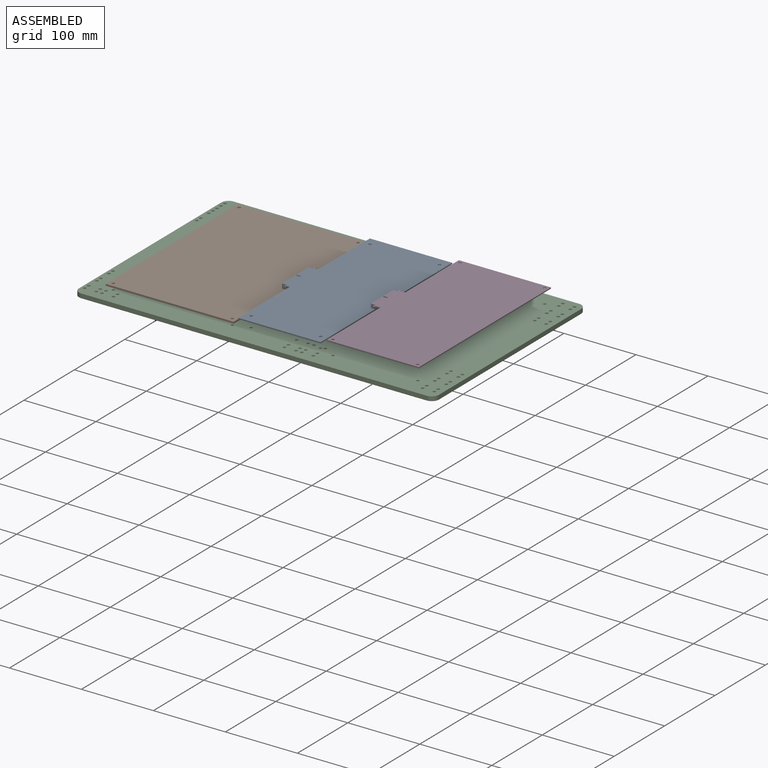
[diagram: assembled view]
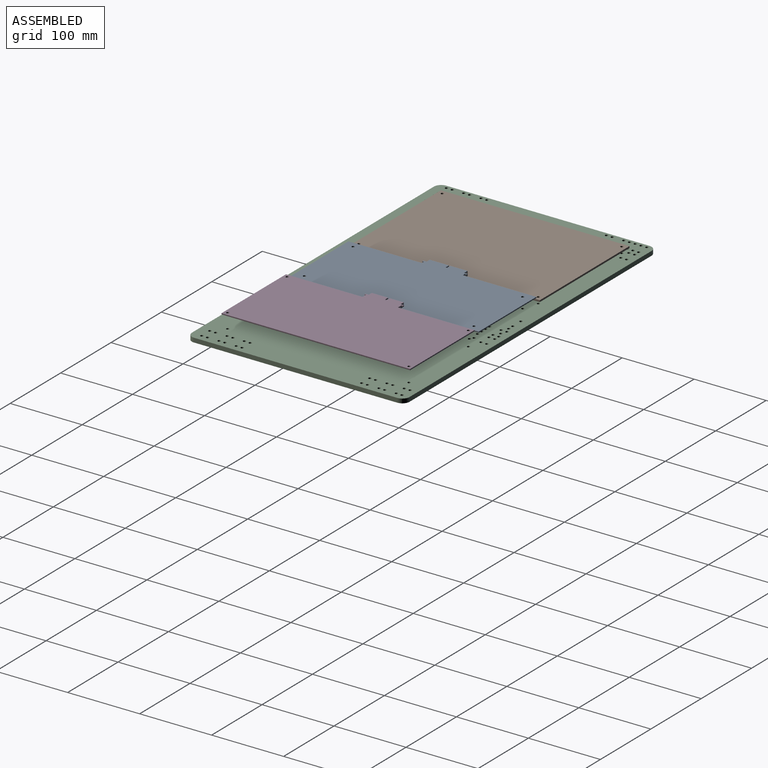
[diagram: assembled view, second angle]
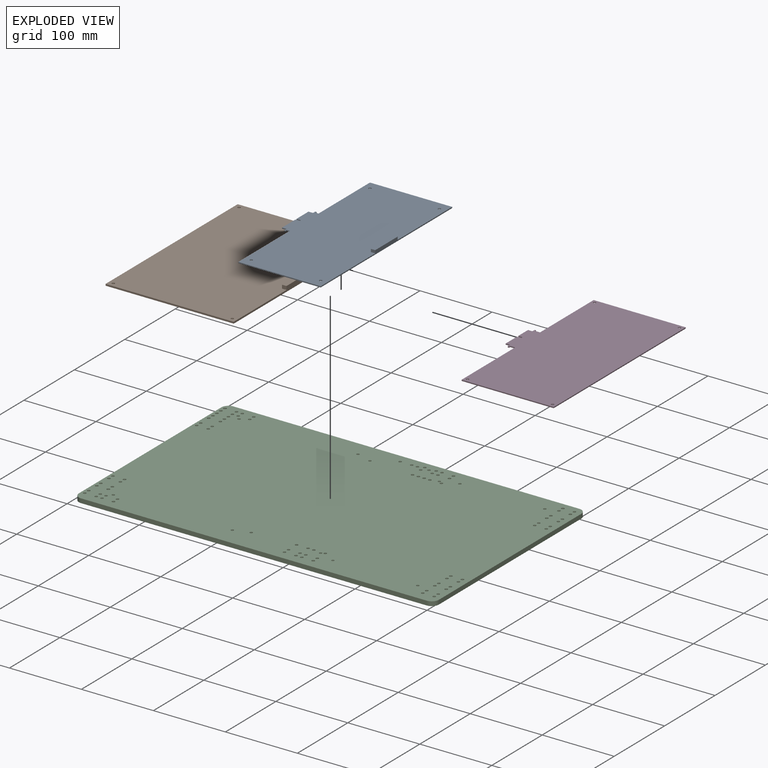
[diagram: exploded view]
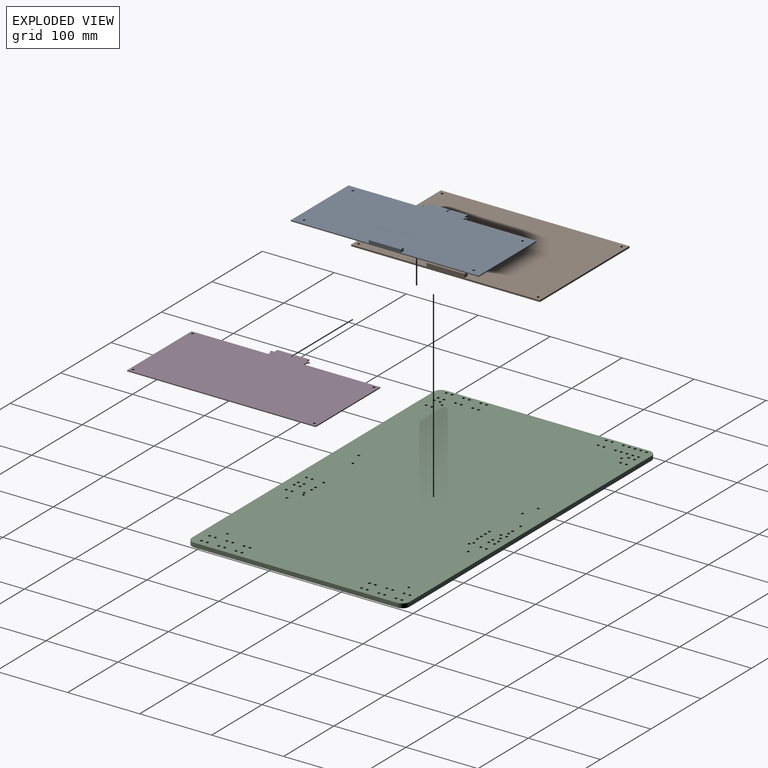
[diagram: exploded view, second angle]
ASSEMBLY  parts=4 mates=3
PART A: 30 faces, bbox 126.7x261x5.5 mm
  f0: plane 114.3x1.5mm, normal (0,1,0), area 171.4mm2, adj f1,f19,f24,f25
  f1: plane 102x1.5mm, normal (-1,0,0), area 153mm2, adj f0,f2,f24,f25
  f2: plane 4.25x1.5mm, normal (0,1,0), area 6.4mm2, adj f1,f3,f24,f25
  f3: plane 2.25x1.5mm, normal (1,0,0), area 3.4mm2, adj f2,f4,f24,f25
  f4: plane 1.85x1.5mm, normal (0,1,0), area 2.8mm2, adj f3,f5,f24,f25
  f5: plane 4.5x1.5mm, normal (-1,0,0), area 6.8mm2, adj f4,f6,f24,f25
  f6: plane 6.25x1.5mm, normal (0,1,0), area 9.4mm2, adj f5,f7,f24,f25
  f7: plane 23.9x1.5mm, normal (-1,0,0), area 35.9mm2, adj f6,f8,f24,f25
  f8: plane 6.25x1.5mm, normal (0,-1,0), area 9.4mm2, adj f7,f9,f24,f25
  f9: plane 1.9x1.5mm, normal (-1,0,0), area 2.8mm2, adj f8,f10,f24,f25
  f10: plane 6.25x1.5mm, normal (0,1,0), area 9.4mm2, adj f9,f11,f24,f25
  f11: plane 26.7x1.5mm, normal (-1,0,0), area 40.1mm2, adj f10,f12,f24,f25
  f12: plane 6.25x1.5mm, normal (0,-1,0), area 9.4mm2, adj f11,f13,f24,f25
  f13: plane 4.5x1.5mm, normal (-1,0,0), area 6.7mm2, adj f12,f14,f24,f25
  f14: plane 1.85x1.5mm, normal (0,-1,0), area 2.8mm2, adj f13,f15,f24,f25
  f15: plane 2.25x1.5mm, normal (1,0,0), area 3.4mm2, adj f14,f16,f24,f25
  f16: plane 4.25x1.5mm, normal (0,-1,0), area 6.4mm2, adj f15,f17,f24,f25
  f17: plane 102x1.5mm, normal (-1,0,0), area 153mm2, adj f16,f18,f24,f25
  f18: plane 114.3x1.5mm, normal (0,-1,0), area 171.4mm2, adj f17,f19,f24,f25
  f19: plane 261x5.5mm, normal (1,0,0), area 569.1mm2, adj f0,f18,f24,f25,f26,f27,f29
  f20: cylinder r=1.91mm len=3.81mm, axis (0,0,-1), area 18mm2, adj f24,f25
  f21: cylinder r=1.91mm len=3.81mm, axis (0,0,-1), area 18mm2, adj f24,f25
  f22: cylinder r=1.91mm len=3.81mm, axis (0,0,-1), area 18mm2, adj f24,f25
  f23: cylinder r=1.91mm len=3.81mm, axis (0,0,-1), area 18mm2, adj f24,f25
  f24: plane 261x126.65mm, normal (0,0,1), area 30192.6mm2, adj f0,f1,f2,f3,f4,f5,f6,f7
  f25: plane 261x126.65mm, normal (0,0,-1), area 30459mm2, adj f0,f1,f2,f3,f4,f5,f6,f7
  f26: plane 6x4mm, normal (0,-1,0), area 24mm2, adj f19,f24,f28,f29
  f27: plane 6x4mm, normal (0,1,0), area 24mm2, adj f19,f24,f28,f29
  f28: plane 44.4x4mm, normal (-1,0,0), area 177.6mm2, adj f24,f26,f27,f29
  f29: plane 44.4x6mm, normal (0,0,1), area 266.4mm2, adj f19,f26,f27,f28
PART B: 14 faces, bbox 178x262x7.2 mm
  f0: plane 178x2.32mm, normal (0,1,0), area 413mm2, adj f1,f3,f8,f9
  f1: plane 262x2.32mm, normal (-1,0,0), area 607.8mm2, adj f0,f2,f8,f9
  f2: plane 178x2.32mm, normal (0,-1,0), area 413mm2, adj f1,f3,f8,f9
  f3: plane 262x7.24mm, normal (1,0,0), area 866.6mm2, adj f0,f2,f8,f9,f10,f11,f13
  f4: cylinder r=1.91mm len=3.81mm, axis (0,0,-1), area 27.8mm2, adj f8,f9
  f5: cylinder r=1.91mm len=3.81mm, axis (0,0,-1), area 27.8mm2, adj f8,f9
  f6: cylinder r=1.91mm len=3.81mm, axis (0,0,-1), area 27.8mm2, adj f8,f9
  f7: cylinder r=1.91mm len=3.81mm, axis (0,0,-1), area 27.8mm2, adj f8,f9
  f8: plane 262x178mm, normal (0,0,1), area 46261.6mm2, adj f0,f1,f2,f3,f4,f5,f6,f7
  f9: plane 262x178mm, normal (0,0,-1), area 46590.4mm2, adj f0,f1,f2,f3,f4,f5,f6,f7
  f10: plane 6.25x4.92mm, normal (0,-1,0), area 30.7mm2, adj f3,f8,f12,f13
  f11: plane 6.25x4.92mm, normal (0,1,0), area 30.7mm2, adj f3,f8,f12,f13
  f12: plane 52.6x4.92mm, normal (-1,0,0), area 258.8mm2, adj f8,f10,f11,f13
  f13: plane 52.6x6.25mm, normal (0,0,1), area 328.7mm2, adj f3,f10,f11,f12
PART C: 109 faces, bbox 500x302.3x6 mm
  f0: cylinder r=10mm len=10mm, axis (0,0,-1), area 94.2mm2, adj f1,f106,f107,f108
  f1: plane 282.26x6mm, normal (1,0,0), area 1693.6mm2, adj f0,f2,f107,f108
  f2: cylinder r=10mm len=10mm, axis (0,0,-1), area 94.2mm2, adj f1,f3,f107,f108
  f3: plane 480x6mm, normal (0,1,0), area 2880mm2, adj f2,f4,f107,f108
  f4: cylinder r=10mm len=10mm, axis (0,0,-1), area 94.2mm2, adj f3,f5,f107,f108
  f5: plane 282.26x6mm, normal (-1,0,0), area 1693.6mm2, adj f4,f6,f107,f108
  f6: cylinder r=10mm len=10mm, axis (0,0,-1), area 94.2mm2, adj f5,f106,f107,f108
  f7: cylinder r=2mm len=6mm, axis (0,0,-1), area 75.4mm2, adj f107,f108
  f8: cylinder r=2mm len=6mm, axis (0,0,-1), area 75.4mm2, adj f107,f108
  f9: cylinder r=2mm len=6mm, axis (0,0,-1), area 75.4mm2, adj f107,f108
  f10: cylinder r=2mm len=6mm, axis (0,0,-1), area 75.4mm2, adj f107,f108
  f11: cylinder r=2mm len=6mm, axis (0,0,-1), area 75.4mm2, adj f107,f108
  f12: cylinder r=2mm len=6mm, axis (0,0,-1), area 75.4mm2, adj f107,f108
  f13: cylinder r=2mm len=6mm, axis (0,0,-1), area 75.4mm2, adj f107,f108
  f14: cylinder r=2mm len=6mm, axis (0,0,-1), area 75.4mm2, adj f107,f108
  f15: cylinder r=2mm len=6mm, axis (0,0,-1), area 75.4mm2, adj f107,f108
  f16: cylinder r=2mm len=6mm, axis (0,0,-1), area 75.4mm2, adj f107,f108
  f17: cylinder r=2mm len=6mm, axis (0,0,-1), area 75.4mm2, adj f107,f108
  f18: cylinder r=2mm len=6mm, axis (0,0,-1), area 75.4mm2, adj f107,f108
  f19: cylinder r=2mm len=6mm, axis (0,0,-1), area 75.4mm2, adj f107,f108
  f20: cylinder r=2mm len=6mm, axis (0,0,-1), area 75.4mm2, adj f107,f108
  f21: cylinder r=2mm len=6mm, axis (0,0,-1), area 75.4mm2, adj f107,f108
  f22: cylinder r=2mm len=6mm, axis (0,0,-1), area 75.4mm2, adj f107,f108
  f23: cylinder r=2mm len=6mm, axis (0,0,-1), area 75.4mm2, adj f107,f108
  f24: cylinder r=2mm len=6mm, axis (0,0,-1), area 75.4mm2, adj f107,f108
  f25: cylinder r=2mm len=6mm, axis (0,0,-1), area 75.4mm2, adj f107,f108
  f26: cylinder r=2mm len=6mm, axis (0,0,-1), area 75.4mm2, adj f107,f108
  f27: cylinder r=2mm len=6mm, axis (0,0,-1), area 75.4mm2, adj f107,f108
  f28: cylinder r=2mm len=6mm, axis (0,0,-1), area 75.4mm2, adj f107,f108
  f29: cylinder r=2mm len=6mm, axis (0,0,-1), area 75.4mm2, adj f107,f108
  f30: cylinder r=2mm len=6mm, axis (0,0,-1), area 75.4mm2, adj f107,f108
  f31: cylinder r=2mm len=6mm, axis (0,0,-1), area 75.4mm2, adj f107,f108
  f32: cylinder r=2mm len=6mm, axis (0,0,-1), area 75.4mm2, adj f107,f108
  f33: cylinder r=2mm len=6mm, axis (0,0,-1), area 75.4mm2, adj f107,f108
  f34: cylinder r=2mm len=6mm, axis (0,0,-1), area 75.4mm2, adj f107,f108
  f35: cylinder r=2mm len=6mm, axis (0,0,-1), area 75.4mm2, adj f107,f108
  f36: cylinder r=2mm len=6mm, axis (0,0,-1), area 75.4mm2, adj f107,f108
  f37: cylinder r=2mm len=6mm, axis (0,0,-1), area 75.4mm2, adj f107,f108
  f38: cylinder r=2mm len=6mm, axis (0,0,-1), area 75.4mm2, adj f107,f108
  f39: cylinder r=2mm len=6mm, axis (0,0,-1), area 75.4mm2, adj f107,f108
  f40: cylinder r=2mm len=6mm, axis (0,0,-1), area 75.4mm2, adj f107,f108
  f41: cylinder r=1.91mm len=6mm, axis (0,0,-1), area 71.8mm2, adj f107,f108
  f42: cylinder r=1.91mm len=6mm, axis (0,0,-1), area 71.8mm2, adj f107,f108
  f43: cylinder r=1.91mm len=6mm, axis (0,0,-1), area 71.8mm2, adj f107,f108
  f44: cylinder r=1.91mm len=6mm, axis (0,0,-1), area 71.8mm2, adj f107,f108
  f45: cylinder r=1.91mm len=6mm, axis (0,0,-1), area 71.8mm2, adj f107,f108
  f46: cylinder r=1.91mm len=6mm, axis (0,0,-1), area 71.8mm2, adj f107,f108
  f47: cylinder r=1.91mm len=6mm, axis (0,0,-1), area 71.8mm2, adj f107,f108
  f48: cylinder r=1.91mm len=6mm, axis (0,0,-1), area 71.8mm2, adj f107,f108
  f49: cylinder r=1.91mm len=6mm, axis (0,0,-1), area 71.8mm2, adj f107,f108
  f50: cylinder r=1.91mm len=6mm, axis (0,0,-1), area 71.8mm2, adj f107,f108
  f51: cylinder r=1.91mm len=6mm, axis (0,0,-1), area 71.8mm2, adj f107,f108
  f52: cylinder r=1.91mm len=6mm, axis (0,0,-1), area 71.8mm2, adj f107,f108
  f53: cylinder r=2mm len=6mm, axis (0,0,-1), area 75.4mm2, adj f107,f108
  f54: cylinder r=2mm len=6mm, axis (0,0,-1), area 75.4mm2, adj f107,f108
  f55: cylinder r=2mm len=6mm, axis (0,0,-1), area 75.4mm2, adj f107,f108
  f56: cylinder r=2mm len=6mm, axis (0,0,-1), area 75.4mm2, adj f107,f108
  f57: cylinder r=2mm len=6mm, axis (0,0,-1), area 75.4mm2, adj f107,f108
  f58: cylinder r=2mm len=6mm, axis (0,0,-1), area 75.4mm2, adj f107,f108
  f59: cylinder r=2mm len=6mm, axis (0,0,-1), area 75.4mm2, adj f107,f108
  f60: cylinder r=2mm len=6mm, axis (0,0,-1), area 75.4mm2, adj f107,f108
  f61: cylinder r=2mm len=6mm, axis (0,0,-1), area 75.4mm2, adj f107,f108
  f62: cylinder r=2mm len=6mm, axis (0,0,-1), area 75.4mm2, adj f107,f108
  f63: cylinder r=2mm len=6mm, axis (0,0,-1), area 75.4mm2, adj f107,f108
  f64: cylinder r=2mm len=6mm, axis (0,0,-1), area 75.4mm2, adj f107,f108
  f65: cylinder r=2mm len=6mm, axis (0,0,-1), area 75.4mm2, adj f107,f108
  f66: cylinder r=2mm len=6mm, axis (0,0,-1), area 75.4mm2, adj f107,f108
  f67: cylinder r=2mm len=6mm, axis (0,0,-1), area 75.4mm2, adj f107,f108
  f68: cylinder r=2mm len=6mm, axis (0,0,-1), area 75.4mm2, adj f107,f108
  f69: cylinder r=2mm len=6mm, axis (0,0,-1), area 75.4mm2, adj f107,f108
  f70: cylinder r=2mm len=6mm, axis (0,0,-1), area 75.4mm2, adj f107,f108
  f71: cylinder r=2mm len=6mm, axis (0,0,-1), area 75.4mm2, adj f107,f108
  f72: cylinder r=2mm len=6mm, axis (0,0,-1), area 75.4mm2, adj f107,f108
  f73: cylinder r=2mm len=6mm, axis (0,0,-1), area 75.4mm2, adj f107,f108
  f74: cylinder r=2mm len=6mm, axis (0,0,-1), area 75.4mm2, adj f107,f108
  f75: cylinder r=2mm len=6mm, axis (0,0,-1), area 75.4mm2, adj f107,f108
  f76: cylinder r=2mm len=6mm, axis (0,0,-1), area 75.4mm2, adj f107,f108
  f77: cylinder r=2mm len=6mm, axis (0,0,-1), area 75.4mm2, adj f107,f108
  f78: cylinder r=2mm len=6mm, axis (0,0,-1), area 75.4mm2, adj f107,f108
  f79: cylinder r=2mm len=6mm, axis (0,0,-1), area 75.4mm2, adj f107,f108
  f80: cylinder r=2mm len=6mm, axis (0,0,-1), area 75.4mm2, adj f107,f108
  f81: cylinder r=2mm len=6mm, axis (0,0,-1), area 75.4mm2, adj f107,f108
  f82: cylinder r=2mm len=6mm, axis (0,0,-1), area 75.4mm2, adj f107,f108
  f83: cylinder r=2mm len=6mm, axis (0,0,-1), area 75.4mm2, adj f107,f108
  f84: cylinder r=2mm len=6mm, axis (0,0,-1), area 75.4mm2, adj f107,f108
  f85: cylinder r=2mm len=6mm, axis (0,0,-1), area 75.4mm2, adj f107,f108
  f86: cylinder r=2mm len=6mm, axis (0,0,-1), area 75.4mm2, adj f107,f108
  f87: cylinder r=2mm len=6mm, axis (0,0,-1), area 75.4mm2, adj f107,f108
  f88: cylinder r=2mm len=6mm, axis (0,0,-1), area 75.4mm2, adj f107,f108
  f89: cylinder r=2mm len=6mm, axis (0,0,-1), area 75.4mm2, adj f107,f108
  f90: cylinder r=2mm len=6mm, axis (0,0,-1), area 75.4mm2, adj f107,f108
  f91: cylinder r=2mm len=6mm, axis (0,0,-1), area 75.4mm2, adj f107,f108
  f92: cylinder r=2mm len=6mm, axis (0,0,-1), area 75.4mm2, adj f107,f108
  f93: cylinder r=2mm len=6mm, axis (0,0,-1), area 75.4mm2, adj f107,f108
  f94: cylinder r=2mm len=6mm, axis (0,0,-1), area 75.4mm2, adj f107,f108
  f95: cylinder r=2mm len=6mm, axis (0,0,-1), area 75.4mm2, adj f107,f108
  f96: cylinder r=2mm len=6mm, axis (0,0,-1), area 75.4mm2, adj f107,f108
  f97: cylinder r=2mm len=6mm, axis (0,0,-1), area 75.4mm2, adj f107,f108
  f98: cylinder r=2mm len=6mm, axis (0,0,-1), area 75.4mm2, adj f107,f108
  f99: cylinder r=2mm len=6mm, axis (0,0,-1), area 75.4mm2, adj f107,f108
  f100: cylinder r=2mm len=6mm, axis (0,0,-1), area 75.4mm2, adj f107,f108
  f101: cylinder r=2mm len=6mm, axis (0,0,-1), area 75.4mm2, adj f107,f108
  f102: cylinder r=2mm len=6mm, axis (0,0,-1), area 75.4mm2, adj f107,f108
  f103: cylinder r=2mm len=6mm, axis (0,0,-1), area 75.4mm2, adj f107,f108
  f104: cylinder r=2mm len=6mm, axis (0,0,-1), area 75.4mm2, adj f107,f108
  f105: cylinder r=2mm len=6mm, axis (0,0,-1), area 75.4mm2, adj f107,f108
  f106: plane 480x6mm, normal (0,-1,0), area 2880mm2, adj f0,f6,f107,f108
  f107: plane 500x302.26mm, normal (0,0,1), area 149814.1mm2, adj f0,f1,f2,f3,f4,f5,f6,f7
  f108: plane 500x302.26mm, normal (0,0,-1), area 149814.1mm2, adj f0,f1,f2,f3,f4,f5,f6,f7
PART D: 26 faces, bbox 142.9x262x1.5 mm
  f0: plane 1.9x1.5mm, normal (0,-1,0), area 2.8mm2, adj f1,f22,f24,f25
  f1: plane 2x1.5mm, normal (1,0,0), area 3mm2, adj f0,f2,f24,f25
  f2: plane 7x1.5mm, normal (0,-1,0), area 10.5mm2, adj f1,f3,f24,f25
  f3: plane 106.3x1.5mm, normal (-1,0,0), area 159.5mm2, adj f2,f4,f24,f25
  f4: plane 128x1.5mm, normal (0,-1,0), area 192mm2, adj f3,f5,f24,f25
  f5: plane 262x1.5mm, normal (1,0,0), area 393mm2, adj f4,f6,f24,f25
  f6: plane 128x1.5mm, normal (0,1,0), area 192mm2, adj f5,f7,f24,f25
  f7: plane 106.3x1.5mm, normal (-1,0,0), area 159.5mm2, adj f6,f8,f24,f25
  f8: plane 7x1.5mm, normal (0,1,0), area 10.5mm2, adj f7,f9,f24,f25
  f9: plane 2x1.5mm, normal (1,0,0), area 3mm2, adj f8,f10,f24,f25
  f10: plane 1.9x1.5mm, normal (0,1,0), area 2.8mm2, adj f9,f11,f24,f25
  f11: plane 4.5x1.5mm, normal (-1,0,0), area 6.8mm2, adj f10,f12,f24,f25
  f12: plane 6x1.5mm, normal (0,1,0), area 9mm2, adj f11,f13,f24,f25
  f13: plane 19.35x1.5mm, normal (-1,0,0), area 29mm2, adj f12,f14,f24,f25
  f14: plane 6x1.5mm, normal (0,-1,0), area 9mm2, adj f13,f15,f24,f25
  f15: plane 2.4x1.5mm, normal (-1,0,0), area 3.6mm2, adj f14,f16,f24,f25
  f16: plane 6x1.5mm, normal (0,1,0), area 9mm2, adj f15,f17,f24,f25
  f17: plane 22.65x1.5mm, normal (-1,0,0), area 34mm2, adj f16,f18,f24,f25
  f18: plane 6x1.5mm, normal (0,-1,0), area 9mm2, adj f17,f22,f24,f25
  f19: cylinder r=1.91mm len=3.81mm, axis (0,0,-1), area 18mm2, adj f24,f25
  f20: cylinder r=1.91mm len=3.81mm, axis (0,0,-1), area 18mm2, adj f24,f25
  f21: cylinder r=1.91mm len=3.81mm, axis (0,0,-1), area 18mm2, adj f24,f25
  f22: plane 4.5x1.5mm, normal (-1,0,0), area 6.7mm2, adj f0,f18,f24,f25
  f23: cylinder r=1.91mm len=3.81mm, axis (0,0,-1), area 18mm2, adj f24,f25
  f24: plane 262x142.9mm, normal (0,0,1), area 34189.7mm2, adj f0,f1,f2,f3,f4,f5,f6,f7
  f25: plane 262x142.9mm, normal (0,0,-1), area 34189.7mm2, adj f0,f1,f2,f3,f4,f5,f6,f7
PLACE A t=(225.48,-82.21,19.24)mm
PLACE B t=(41.38,-82.66,12)mm
PLACE C at identity
PLACE D t=(348.68,-82.71,24.74)mm
MATE fastened B.f4 <-> C.f42  axis (0,0,-1) through (47.72,-76.42,12)mm
MATE fastened B.f12 <-> A.f11  axis (-1,0,0) through (213.13,22.04,19.24)mm
MATE fastened A.f28 <-> D.f17  axis (-1,0,0) through (333.78,26.09,24.74)mm
